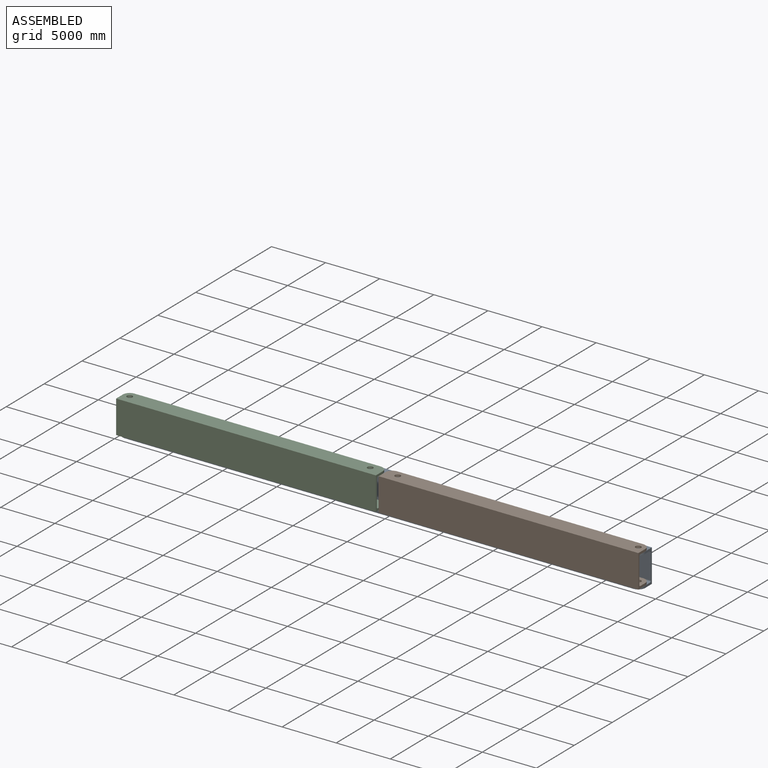
[diagram: assembled view]
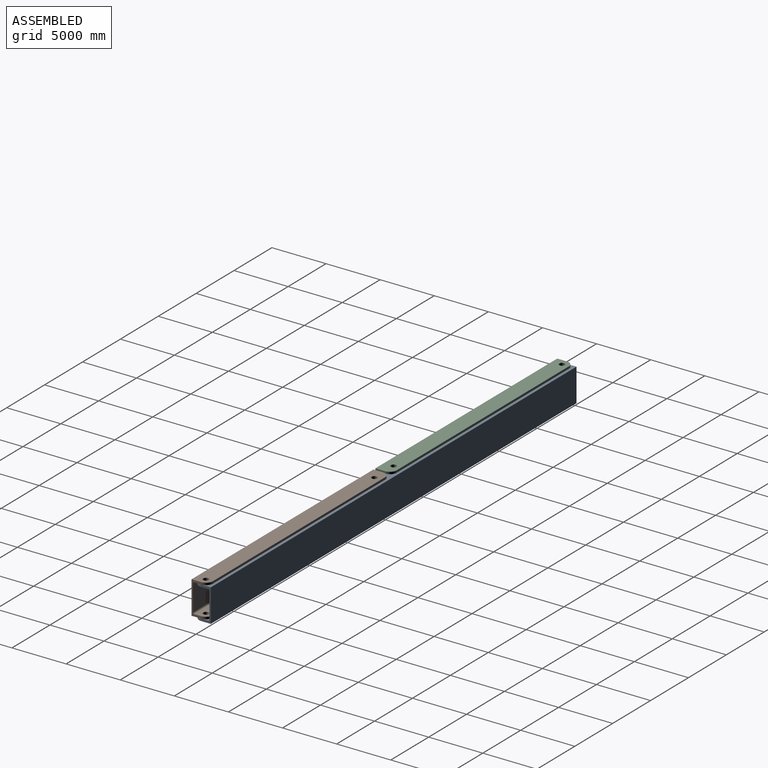
[diagram: assembled view, second angle]
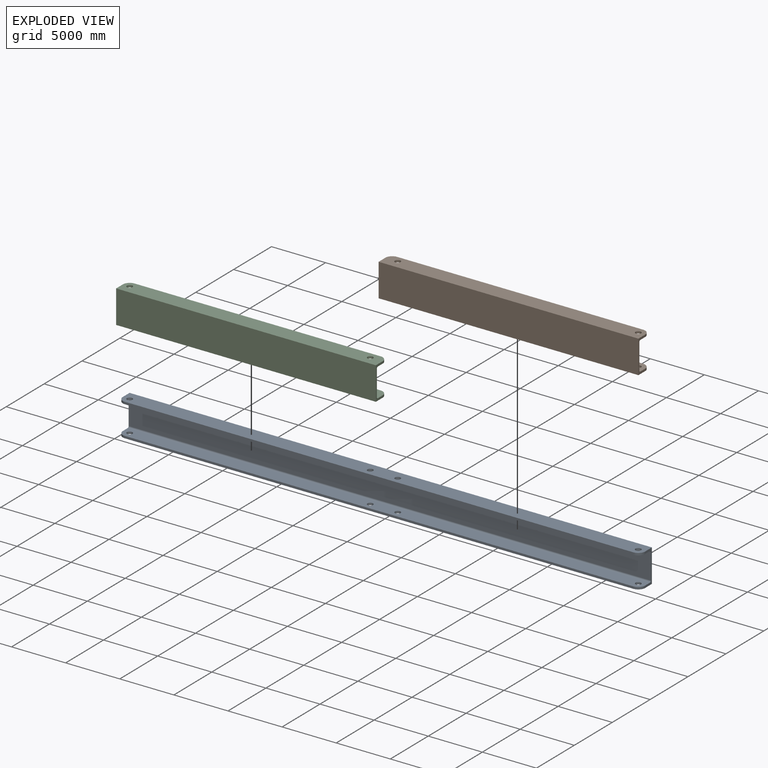
[diagram: exploded view]
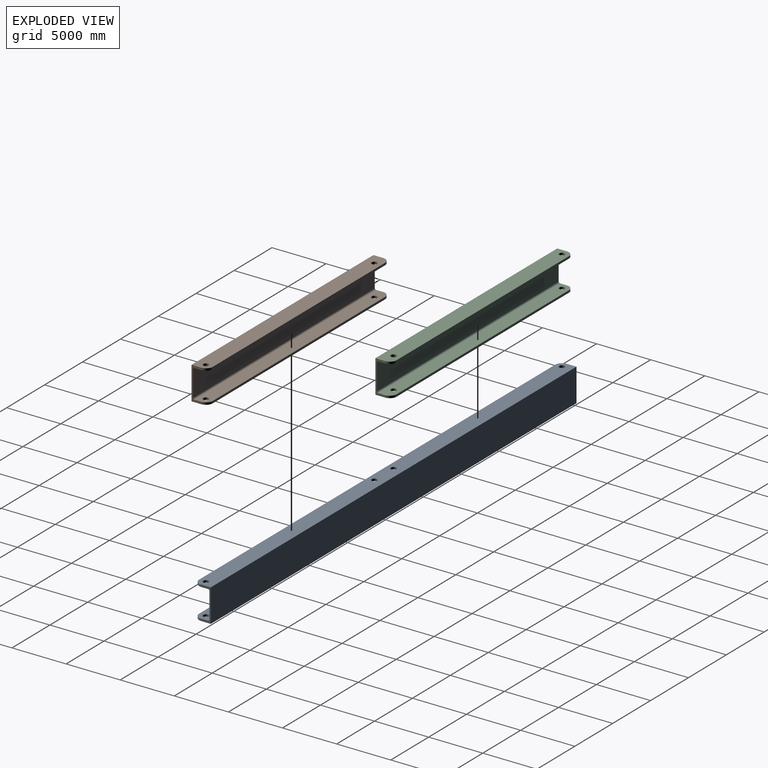
[diagram: exploded view, second angle]
ASSEMBLY  parts=3 mates=2
PART A: 24 faces, bbox 48260x1524x3048 mm
  f0: plane 48260x1524mm, normal (0,0,-1), area 72564442.4mm2, adj f1,f7,f8,f9,f12,f14,f16,f18
  f1: plane 48260x3048mm, normal (0,1,0), area 147096480mm2, adj f0,f2,f8,f9
  f2: plane 48260x1524mm, normal (0,0,1), area 72564442.4mm2, adj f1,f3,f8,f9,f13,f15,f17,f19
  f3: plane 46990x203.2mm, normal (0,-1,0), area 9548368mm2, adj f2,f4,f20,f22
  f4: plane 48260x1270mm, normal (0,0,-1), area 60306402.4mm2, adj f3,f8,f9,f10,f13,f15,f17,f19
  f5: plane 48260x2387.6mm, normal (0,-1,0), area 115225576mm2, adj f8,f9,f10,f11
  f6: plane 48260x1270mm, normal (0,0,1), area 60306402.4mm2, adj f7,f8,f9,f11,f12,f14,f16,f18
  f7: plane 46990x203.2mm, normal (0,-1,0), area 9548368mm2, adj f0,f6,f21,f23
  f8: plane 3048x889mm, normal (1,0,0), area 703695.4mm2, adj f0,f1,f2,f4,f5,f6,f10,f11
  f9: plane 3048x889mm, normal (-1,0,0), area 703695.4mm2, adj f0,f1,f2,f4,f5,f6,f10,f11
  f10: cylinder r=127mm len=48260mm, axis (1,0,0), area 9627442.1mm2, adj f4,f5,f8,f9
  f11: cylinder r=127mm len=48260mm, axis (-1,0,0), area 9627442.1mm2, adj f5,f6,f8,f9
  f12: cylinder r=254mm len=508mm, axis (0,0,1), area 324292.8mm2, adj f0,f6
  f13: cylinder r=254mm len=508mm, axis (0,0,1), area 324292.8mm2, adj f2,f4
  f14: cylinder r=254mm len=508mm, axis (0,0,1), area 324292.8mm2, adj f0,f6
  f15: cylinder r=254mm len=508mm, axis (0,0,1), area 324292.8mm2, adj f2,f4
  f16: cylinder r=254mm len=508mm, axis (0,0,1), area 324292.8mm2, adj f0,f6
  f17: cylinder r=254mm len=508mm, axis (0,0,1), area 324292.8mm2, adj f2,f4
  f18: cylinder r=254mm len=508mm, axis (0,0,1), area 324292.8mm2, adj f0,f6
  f19: cylinder r=254mm len=508mm, axis (0,0,1), area 324292.8mm2, adj f2,f4
  f20: cylinder r=635mm len=635mm, axis (0,0,-1), area 202683mm2, adj f2,f3,f4,f9
  f21: cylinder r=635mm len=635mm, axis (0,0,-1), area 202683mm2, adj f0,f6,f7,f9
  f22: cylinder r=635mm len=635mm, axis (0,0,1), area 202683mm2, adj f2,f3,f4,f8
  f23: cylinder r=635mm len=635mm, axis (0,0,1), area 202683mm2, adj f0,f6,f7,f8
PART B: 20 faces, bbox 24003x1524x3048 mm
  f0: plane 24003x1524mm, normal (0,0,-1), area 36002140.4mm2, adj f1,f7,f8,f9,f13,f15,f17,f19
  f1: plane 22733x203.2mm, normal (0,1,0), area 4619345.6mm2, adj f0,f2,f17,f19
  f2: plane 24003x1270mm, normal (0,0,1), area 29905378.4mm2, adj f1,f8,f9,f10,f13,f15,f17,f19
  f3: plane 24003x2387.6mm, normal (0,1,0), area 57309562.8mm2, adj f8,f9,f10,f11
  f4: plane 24003x1270mm, normal (0,0,-1), area 29905378.4mm2, adj f5,f8,f9,f11,f12,f14,f16,f18
  f5: plane 22733x203.2mm, normal (0,1,0), area 4619345.6mm2, adj f4,f6,f16,f18
  f6: plane 24003x1524mm, normal (0,0,1), area 36002140.4mm2, adj f5,f7,f8,f9,f12,f14,f16,f18
  f7: plane 24003x3048mm, normal (0,-1,0), area 73161144mm2, adj f0,f6,f8,f9
  f8: plane 3048x889mm, normal (1,0,0), area 703695.4mm2, adj f0,f2,f3,f4,f6,f7,f10,f11
  f9: plane 3048x889mm, normal (-1,0,0), area 703695.4mm2, adj f0,f2,f3,f4,f6,f7,f10,f11
  f10: cylinder r=127mm len=24003mm, axis (-1,0,0), area 4788385.7mm2, adj f2,f3,f8,f9
  f11: cylinder r=127mm len=24003mm, axis (1,0,0), area 4788385.7mm2, adj f3,f4,f8,f9
  f12: cylinder r=254mm len=508mm, axis (0,0,1), area 324292.8mm2, adj f4,f6
  f13: cylinder r=254mm len=508mm, axis (0,0,1), area 324292.8mm2, adj f0,f2
  f14: cylinder r=254mm len=508mm, axis (0,0,1), area 324292.8mm2, adj f4,f6
  f15: cylinder r=254mm len=508mm, axis (0,0,1), area 324292.8mm2, adj f0,f2
  f16: cylinder r=635mm len=635mm, axis (0,0,1), area 202683mm2, adj f4,f5,f6,f9
  f17: cylinder r=635mm len=635mm, axis (0,0,1), area 202683mm2, adj f0,f1,f2,f9
  f18: cylinder r=635mm len=635mm, axis (0,0,-1), area 202683mm2, adj f4,f5,f6,f8
  f19: cylinder r=635mm len=635mm, axis (0,0,-1), area 202683mm2, adj f0,f1,f2,f8
PART C: same geometry as B
PLACE A t=(-24130,759.1,0)mm
PLACE B rot(axis=(0,1,0),180deg) t=(24130,505.1,3251.2)mm
PLACE C rot(axis=(0,0,1),0deg) t=(-24130,505.1,203.2)mm
MATE revolute A.f12 <-> C.f14  axis (0,0,1) through (-23495,-129.9,3048)mm
MATE revolute A.f14 <-> B.f14  axis (0,0,1) through (23495,-129.9,3048)mm
